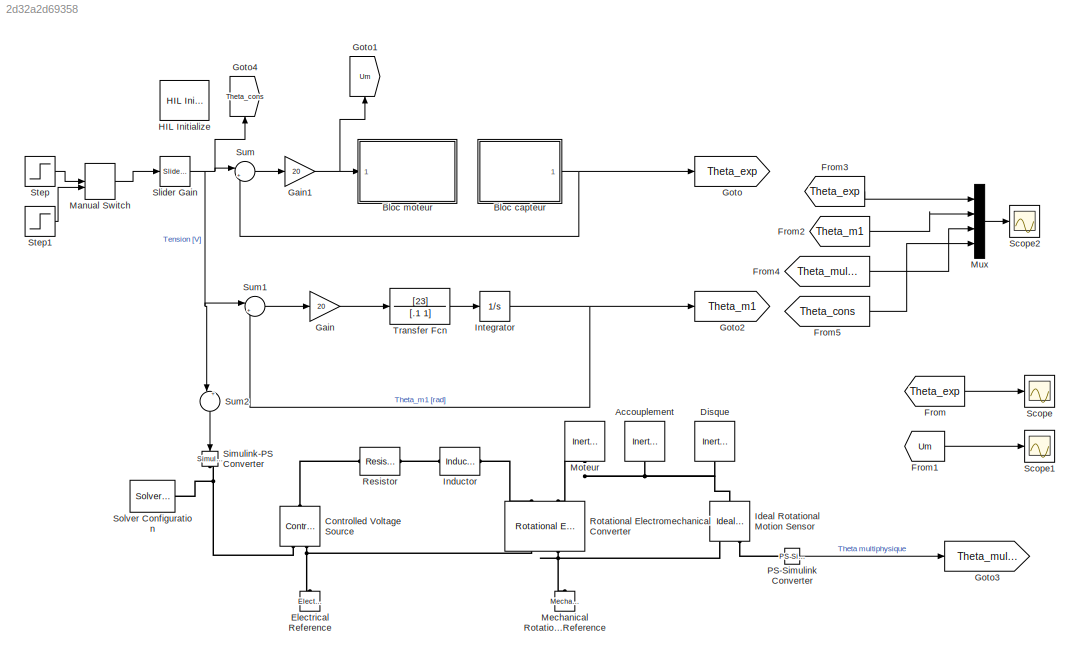
MODEL slx_2d32a2d69358
KIND model
CONFIG AbsTol = 1e-6
CONFIG EnableMultiTasking = on
CONFIG FixedStep = 0.002
CONFIG MaxStep = auto
CONFIG MinStep = auto
CONFIG RelTol = 1e-3
CONFIG SampleTimeConstraint = Unconstrained
CONFIG SolverName = ode1
CONFIG StartTime = 0.0
CONFIG StopTime = inf
BLOCK [Reference] Accouplement  REF=fl_lib/Mechanical/Rotational Elements/Inertia
  NameLocation = left
  Ports = [0, 0, 0, 0, 0, 1]
  SourceBlock = fl_lib/Mechanical/Rotational Elements/Inertia
  SourceProductBaseCode = SS
  SourceType = Inertia
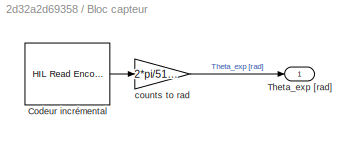
BLOCK [SubSystem] Bloc capteur
  Ports = [0, 1]
  RequestExecContextInheritance = off
BLOCK [Reference] Bloc capteur/Codeur incrémental  REF=quarc_library/Data Acquisition/Generic/Immediate I//O/HIL Read Encoder
  AttributesFormatString = (%<object_name>)
  Ports = [0, 1]
  SourceBlock = quarc_library/Data Acquisition/Generic/Immediate I//O/HIL Read Encoder
  SourceProductName = QUARC Targets
  SourceType = HIL Read Encoder
  UserDataPersistent = on
BLOCK [Outport] Bloc capteur/Theta_exp [rad]
BLOCK [Gain] Bloc capteur/counts to rad
  Gain = 2*pi/512/4
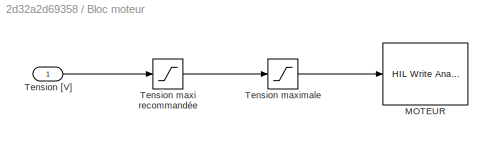
BLOCK [SubSystem] Bloc moteur
  Ports = [1]
  RequestExecContextInheritance = off
BLOCK [Reference] Bloc moteur/MOTEUR  REF=quarc_library/Data Acquisition/Generic/Immediate I//O/HIL Write Analog
  AttributesFormatString = (%<object_name>)
  Ports = [1]
  SourceBlock = quarc_library/Data Acquisition/Generic/Immediate I//O/HIL Write Analog
  SourceProductName = QUARC Targets
  SourceType = HIL Write Analog
  UserDataPersistent = on
BLOCK [Inport] Bloc moteur/Tension [V]
BLOCK [Saturate] Bloc moteur/Tension maxi recommandée
  LowerLimit = -10
  UpperLimit = 10
BLOCK [Saturate] Bloc moteur/Tension maximale
  LowerLimit = -15
  UpperLimit = 15
BLOCK [Reference] Controlled Voltage Source  REF=fl_lib/Electrical/Electrical Sources/Controlled Voltage
Source
  NameLocation = right
  Ports = [0, 0, 0, 0, 0, 1, 2]
  SourceBlock = fl_lib/Electrical/Electrical Sources/Controlled Voltage\nSource
  SourceProductBaseCode = SS
  SourceType = Controlled Voltage\nSource
BLOCK [Reference] Disque  REF=fl_lib/Mechanical/Rotational Elements/Inertia
  NameLocation = left
  Ports = [0, 0, 0, 0, 0, 1]
  SourceBlock = fl_lib/Mechanical/Rotational Elements/Inertia
  SourceProductBaseCode = SS
  SourceType = Inertia
BLOCK [Reference] Electrical Reference  REF=fl_lib/Electrical/Electrical Elements/Electrical Reference
  NameLocation = right
  Ports = [0, 0, 0, 0, 0, 1]
  SourceBlock = fl_lib/Electrical/Electrical Elements/Electrical Reference
  SourceProductBaseCode = SS
  SourceType = Electrical Reference
BLOCK [From] From
  GotoTag = Theta_exp
BLOCK [From] From1
  GotoTag = Um
BLOCK [From] From2
  GotoTag = Theta_m1
BLOCK [From] From3
  GotoTag = Theta_exp
BLOCK [From] From4
  Commented = on
  GotoTag = Theta_multi
BLOCK [From] From5
  GotoTag = Theta_cons
BLOCK [Gain] Gain
  Gain = 20
BLOCK [Gain] Gain1
  Gain = 20
BLOCK [Goto] Goto
  GotoTag = Theta_exp
BLOCK [Goto] Goto1
  GotoTag = Um
  NameLocation = right
BLOCK [Goto] Goto2
  GotoTag = Theta_m1
BLOCK [Goto] Goto3
  GotoTag = Theta_multi
BLOCK [Goto] Goto4
  GotoTag = Theta_cons
  NameLocation = right
BLOCK [Reference] HIL Initialize  REF=quarc_library/Data Acquisition/Generic/Configuration/HIL Initialize
  AttributesFormatString = %<object_name> (%<board_type>-%<board_number>)
  Ports = []
  Priority = -99
  SourceBlock = quarc_library/Data Acquisition/Generic/Configuration/HIL Initialize
  SourceProductName = QUARC Targets
  SourceType = HIL Initialize
  UserDataPersistent = on
BLOCK [Reference] Ideal Rotational Motion Sensor  REF=fl_lib/Mechanical/Mechanical Sensors/Ideal Rotational
Motion Sensor
  NameLocation = left
  Ports = [0, 0, 0, 0, 0, 1, 3]
  SourceBlock = fl_lib/Mechanical/Mechanical Sensors/Ideal Rotational\nMotion Sensor
  SourceProductBaseCode = SS
  SourceType = Ideal Rotational\nMotion Sensor
BLOCK [Reference] Inductor  REF=fl_lib/Electrical/Electrical Elements/Inductor
  Ports = [0, 0, 0, 0, 0, 1, 1]
  SourceBlock = fl_lib/Electrical/Electrical Elements/Inductor
  SourceProductBaseCode = SS
  SourceType = Inductor
BLOCK [Integrator] Integrator
  Ports = [1, 1]
BLOCK [ManualSwitch] Manual Switch
BLOCK [Reference] Mechanical Rotational Reference  REF=fl_lib/Mechanical/Rotational Elements/Mechanical
Rotational Reference
  NameLocation = right
  Ports = [0, 0, 0, 0, 0, 1]
  SourceBlock = fl_lib/Mechanical/Rotational Elements/Mechanical\nRotational Reference
  SourceProductBaseCode = SS
  SourceType = Mechanical\nRotational Reference
BLOCK [Reference] Moteur  REF=fl_lib/Mechanical/Rotational Elements/Inertia
  NameLocation = left
  Ports = [0, 0, 0, 0, 0, 1]
  SourceBlock = fl_lib/Mechanical/Rotational Elements/Inertia
  SourceProductBaseCode = SS
  SourceType = Inertia
BLOCK [Mux] Mux
  DisplayOption = bar
  Ports = [4, 1]
BLOCK [Reference] PS-Simulink Converter  REF=nesl_utility/PS-Simulink
Converter
  Ports = [0, 1, 0, 0, 0, 1]
  SourceBlock = nesl_utility/PS-Simulink\nConverter
  SourceProductBaseCode = PW,SS
  SourceType = PS-Simulink\nConverter
BLOCK [Reference] Resistor  REF=fl_lib/Electrical/Electrical Elements/Resistor
  Ports = [0, 0, 0, 0, 0, 1, 1]
  SourceBlock = fl_lib/Electrical/Electrical Elements/Resistor
  SourceProductBaseCode = SS
  SourceType = Resistor
BLOCK [Reference] Rotational Electromechanical Converter  REF=fl_lib/Electrical/Electrical Elements/Rotational
Electromechanical
Converter
  NameLocation = right
  Ports = [0, 0, 0, 0, 0, 2, 2]
  SourceBlock = fl_lib/Electrical/Electrical Elements/Rotational\nElectromechanical\nConverter
  SourceProductBaseCode = SS
  SourceType = Rotational\nElectromechanical\nConverter
BLOCK [Scope] Scope
  Floating = off
  NumInputPorts = 1
  Ports = [1]
  ScopeSpecificationString = Simulink.scopes.TimeScopeBlockCfg('CurrentConfiguration', extmgr.ConfigurationSet(extmgr.Configuration('Core','General UI',true,'FigureColor',[1 1 1]),extmgr.Configuration('Core','Source UI',true),extmgr.Configuration('Sources','WiredSimulink',true,'DataLoggingVariableName','ScopeData1'),extmgr.Configuration('Visuals','Time Domain',true,'SerializedDisplays',{struct('MinYLimReal','-1.00000','MaxYLi...<+1538ch>
BLOCK [Scope] Scope1
  Floating = off
  NumInputPorts = 1
  Ports = [1]
  ScopeSpecificationString = Simulink.scopes.TimeScopeBlockCfg('CurrentConfiguration', extmgr.ConfigurationSet(extmgr.Configuration('Core','General UI',true,'FigureColor',[1 1 1]),extmgr.Configuration('Core','Source UI',true),extmgr.Configuration('Sources','WiredSimulink',true),extmgr.Configuration('Visuals','Time Domain',true,'SerializedDisplays',{struct('MinYLimReal','-1.00000','MaxYLimReal','1.00000','YLabelReal','','MinYL...<+1497ch>
BLOCK [Scope] Scope2
  Floating = off
  NumInputPorts = 1
  Ports = [1]
  ScopeSpecificationString = Simulink.scopes.TimeScopeBlockCfg('CurrentConfiguration', extmgr.ConfigurationSet(extmgr.Configuration('Core','General UI',true,'FigureColor',[1 1 1]),extmgr.Configuration('Core','Source UI',true),extmgr.Configuration('Sources','WiredSimulink',true,'DataLoggingVariableName','ScopeData2'),extmgr.Configuration('Visuals','Time Domain',true,'SerializedDisplays',{struct('MinYLimReal','-0.24784','MaxYLi...<+2356ch>
BLOCK [Reference] Simulink-PS Converter  REF=nesl_utility/Simulink-PS
Converter
  NameLocation = left
  Ports = [1, 0, 0, 0, 0, 0, 1]
  SourceBlock = nesl_utility/Simulink-PS\nConverter
  SourceProductBaseCode = PW,SS
  SourceType = Simulink-PS\nConverter
BLOCK [Reference] Slider Gain  REF=simulink/Math
Operations/Slider
Gain
  Ports = [1, 1]
  SourceBlock = simulink/Math\nOperations/Slider\nGain
  SourceProductBaseCode = SL
  SourceType = Slider Gain
BLOCK [Reference] Solver Configuration  REF=nesl_utility/Solver
Configuration
  Ports = [0, 0, 0, 0, 0, 0, 1]
  SourceBlock = nesl_utility/Solver\nConfiguration
  SourceProductBaseCode = PW,SS
  SourceType = Solver\nConfiguration
BLOCK [Step] Step
  SampleTime = 0
  Time = 0
BLOCK [Step] Step1
  After = 0
  SampleTime = 0
  Time = 0
BLOCK [Sum] Sum
  Inputs = |+-
  Ports = [2, 1]
BLOCK [Sum] Sum1
  Inputs = |+-
  Ports = [2, 1]
BLOCK [Sum] Sum2
  Inputs = |+-
  NameLocation = left
  Ports = [2, 1]
BLOCK [TransferFcn] Transfer Fcn
  Denominator = [.1 1]
  Numerator = [23]
LINE Bloc capteur/Codeur incrémental:1 -> Bloc capteur/counts to rad:1
LINE Bloc capteur/counts to rad:1 -> Bloc capteur/Theta_exp [rad]:1
NET Bloc capteur:1 -> Goto:1, Sum:2
LINE Bloc moteur/Tension [V]:1 -> Bloc moteur/Tension maxi recommandée:1
LINE Bloc moteur/Tension maxi recommandée:1 -> Bloc moteur/Tension maximale:1
LINE Bloc moteur/Tension maximale:1 -> Bloc moteur/MOTEUR:1
LINE From1:1 -> Scope1:1
LINE From2:1 -> Mux:2
LINE From3:1 -> Mux:1
LINE From4:1 -> Mux:3
LINE From5:1 -> Mux:4
LINE From:1 -> Scope:1
NET Gain1:1 -> Bloc moteur:1, Goto1:1
LINE Gain:1 -> Transfer Fcn:1
NET Integrator:1 -> Goto2:1, Sum1:2
LINE Manual Switch:1 -> Slider Gain:1
LINE Mux:1 -> Scope2:1
LINE PS-Simulink Converter:1 -> Goto3:1
NET Slider Gain:1 -> Goto4:1, Sum1:1, Sum2:1, Sum:1
LINE Step1:1 -> Manual Switch:2
LINE Step:1 -> Manual Switch:1
LINE Sum1:1 -> Gain:1
LINE Sum2:1 -> Simulink-PS Converter:1
LINE Sum:1 -> Gain1:1
LINE Transfer Fcn:1 -> Integrator:1
PNET net1: Accouplement:LConn1 -- Disque:LConn1 -- Ideal Rotational Motion Sensor:LConn1 -- Moteur:LConn1 -- Rotational Electromechanical Converter:LConn2
PLINE Controlled Voltage Source:LConn1 -- Resistor:LConn1
PNET net2: Controlled Voltage Source:RConn1 -- Simulink-PS Converter:RConn1 -- Solver Configuration:RConn1
PNET net3: Controlled Voltage Source:RConn2 -- Electrical Reference:LConn1 -- Rotational Electromechanical Converter:RConn1
PNET net4: Ideal Rotational Motion Sensor:RConn1 -- Mechanical Rotational Reference:LConn1 -- Rotational Electromechanical Converter:RConn2
PLINE Ideal Rotational Motion Sensor:RConn3 -- PS-Simulink Converter:LConn1
PLINE Inductor:LConn1 -- Resistor:RConn1
PLINE Inductor:RConn1 -- Rotational Electromechanical Converter:LConn1
note: NET lines group one-source signal fan-out (src -> all destinations, sorted); 1:1 wires keep LINE; PNET lines group multi-terminal physical nets as a canonical sorted terminal list (undirected conserving connections); 2-terminal nets keep the pairwise PLINE form
